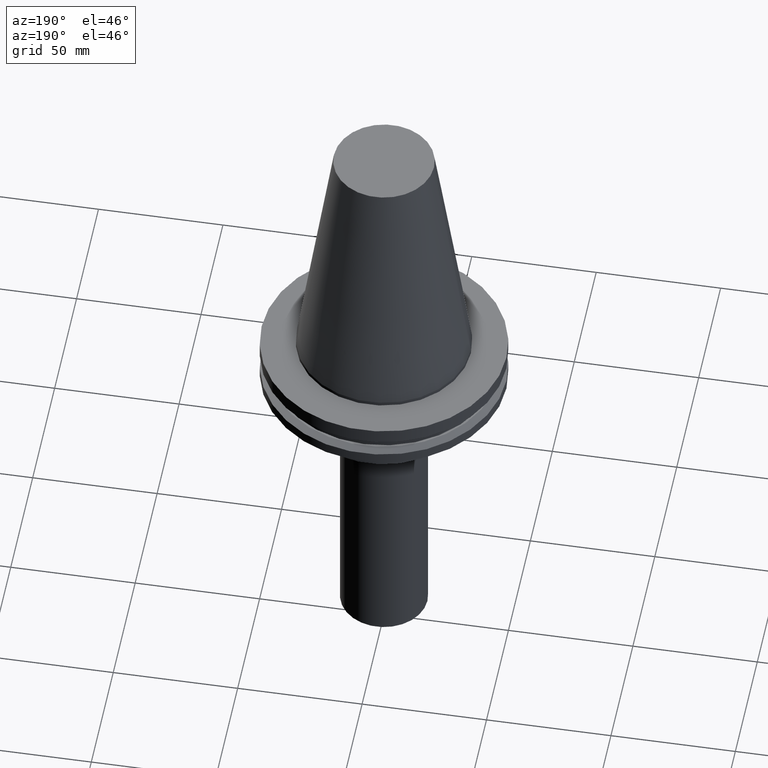
[diagram: clean part render]
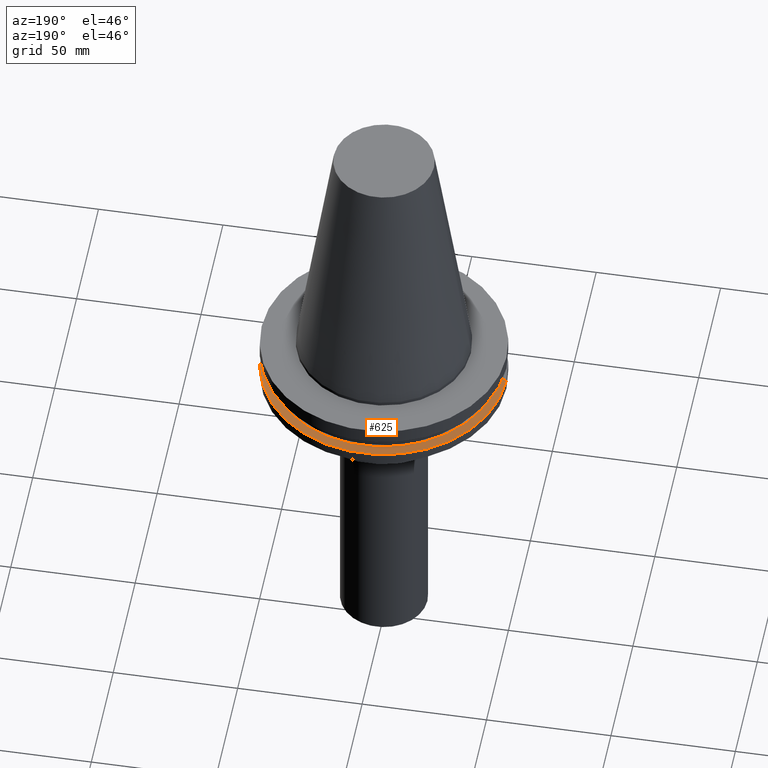
[diagram: same view with one face highlighted and labeled with its STEP entity id]
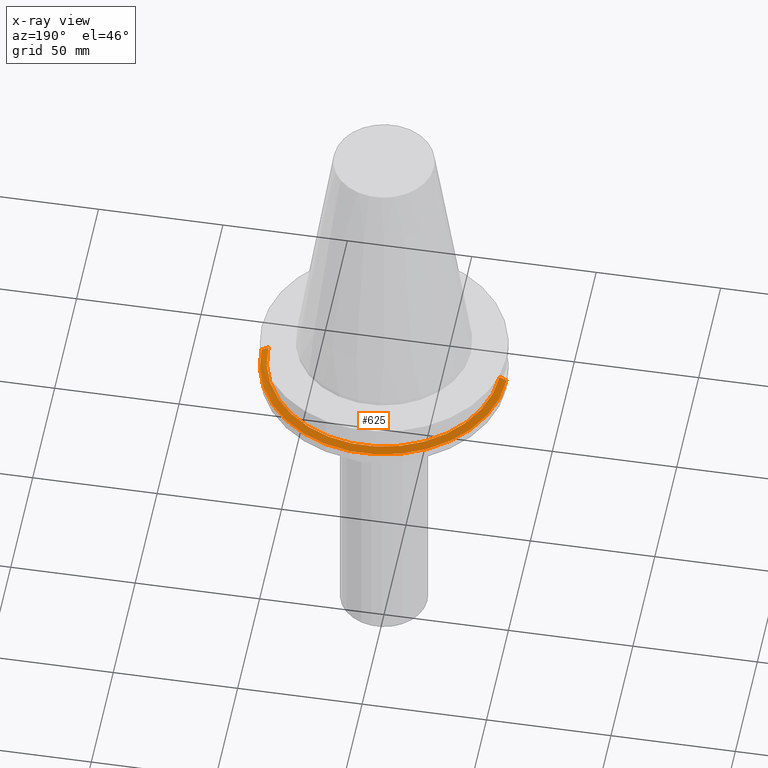
[diagram: x-ray of the same camera — body ghosted, the highlighted face saturated]
A machine part, auxiliary view. The second image highlights one B-rep face of the part: STEP entity #625.
The next image is the same camera in x-ray: the body ghosted, the highlighted face saturated — about 0% of this face is hidden behind the body in this view.
In plain terms, the highlighted conical surface has half-angle 60 deg.
Its self-contained STEP definition (entity closure, byte-faithful):
#11 = VERTEX_POINT ( 'NONE', #688 ) ;
#18 = DIRECTION ( 'NONE',  ( -0.000000000000000000, -0.000000000000000000, 1.000000000000000000 ) ) ;
#37 = DIRECTION ( 'NONE',  ( -1.000000000000000000, 0.000000000000000000, 0.000000000000000000 ) ) ;
#81 = LINE ( 'NONE', #748, #483 ) ;
#151 = AXIS2_PLACEMENT_3D ( 'NONE', #795, #18, #204 ) ;
#152 = ORIENTED_EDGE ( 'NONE', *, *, #505, .T. ) ;
#184 = ORIENTED_EDGE ( 'NONE', *, *, #466, .T. ) ;
#191 = VECTOR ( 'NONE', #439, 1000.000000000000114 ) ;
#204 = DIRECTION ( 'NONE',  ( 1.000000000000000000, 0.000000000000000000, 0.000000000000000000 ) ) ;
#215 = EDGE_LOOP ( 'NONE', ( #737, #184, #152, #533 ) ) ;
#238 = CIRCLE ( 'NONE', #151, 49.21499999999998920 ) ;
#265 = CARTESIAN_POINT ( 'NONE',  ( 46.43919780457007818, 5.857130358318725715E-15, -13.05499999999999794 ) ) ;
#277 = CIRCLE ( 'NONE', #449, 46.43919780457007818 ) ;
#285 = DIRECTION ( 'NONE',  ( 0.8660254037844169472, 1.060575238724880168E-16, -0.5000000000000375255 ) ) ;
#336 = CARTESIAN_POINT ( 'NONE',  ( 0.000000000000000000, 0.000000000000000000, -13.05499999999999794 ) ) ;
#350 = CONICAL_SURFACE ( 'NONE', #829, 49.21499999999998920, 1.047197551196554333 ) ;
#394 = CARTESIAN_POINT ( 'NONE',  ( -49.21499999999998920, 6.027099222003697037E-15, -14.65761014474876944 ) ) ;
#407 = CARTESIAN_POINT ( 'NONE',  ( -46.43919780457007818, 0.000000000000000000, -13.05499999999999794 ) ) ;
#439 = DIRECTION ( 'NONE',  ( -0.8660254037844169472, 0.000000000000000000, -0.5000000000000375255 ) ) ;
#449 = AXIS2_PLACEMENT_3D ( 'NONE', #336, #671, #545 ) ;
#466 = EDGE_CURVE ( 'NONE', #497, #11, #81, .T. ) ;
#483 = VECTOR ( 'NONE', #285, 1000.000000000000114 ) ;
#497 = VERTEX_POINT ( 'NONE', #265 ) ;
#505 = EDGE_CURVE ( 'NONE', #11, #721, #238, .T. ) ;
#511 = LINE ( 'NONE', #572, #191 ) ;
#514 = VERTEX_POINT ( 'NONE', #407 ) ;
#523 = EDGE_CURVE ( 'NONE', #514, #721, #511, .T. ) ;
#533 = ORIENTED_EDGE ( 'NONE', *, *, #523, .F. ) ;
#545 = DIRECTION ( 'NONE',  ( 1.000000000000000000, 0.000000000000000000, 0.000000000000000000 ) ) ;
#567 = FACE_OUTER_BOUND ( 'NONE', #215, .T. ) ;
#572 = CARTESIAN_POINT ( 'NONE',  ( -49.21499999999998920, 0.000000000000000000, -14.65761014474876944 ) ) ;
#625 = ADVANCED_FACE ( 'NONE', ( #567 ), #350, .T. ) ;
#671 = DIRECTION ( 'NONE',  ( -0.000000000000000000, -0.000000000000000000, 1.000000000000000000 ) ) ;
#688 = CARTESIAN_POINT ( 'NONE',  ( 49.21499999999998920, 0.000000000000000000, -14.65761014474876944 ) ) ;
#701 = CARTESIAN_POINT ( 'NONE',  ( 0.000000000000000000, 0.000000000000000000, -14.65761014474876944 ) ) ;
#721 = VERTEX_POINT ( 'NONE', #394 ) ;
#737 = ORIENTED_EDGE ( 'NONE', *, *, #818, .F. ) ;
#748 = CARTESIAN_POINT ( 'NONE',  ( 49.21499999999998920, 6.027099222003697037E-15, -14.65761014474876944 ) ) ;
#758 = DIRECTION ( 'NONE',  ( 0.000000000000000000, 0.000000000000000000, -1.000000000000000000 ) ) ;
#795 = CARTESIAN_POINT ( 'NONE',  ( 0.000000000000000000, 0.000000000000000000, -14.65761014474876944 ) ) ;
#818 = EDGE_CURVE ( 'NONE', #497, #514, #277, .T. ) ;
#829 = AXIS2_PLACEMENT_3D ( 'NONE', #701, #758, #37 ) ;